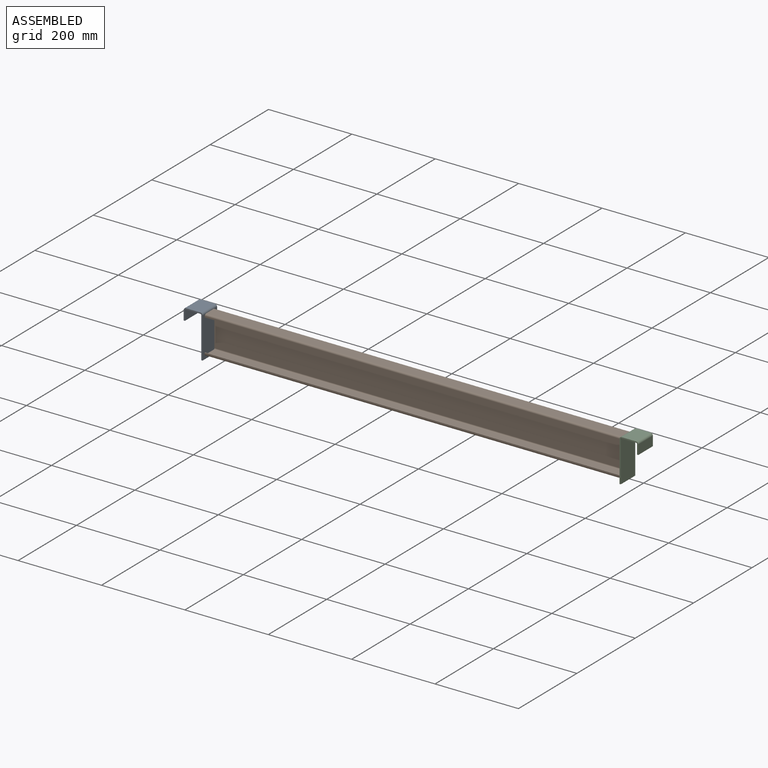
[diagram: assembled view]
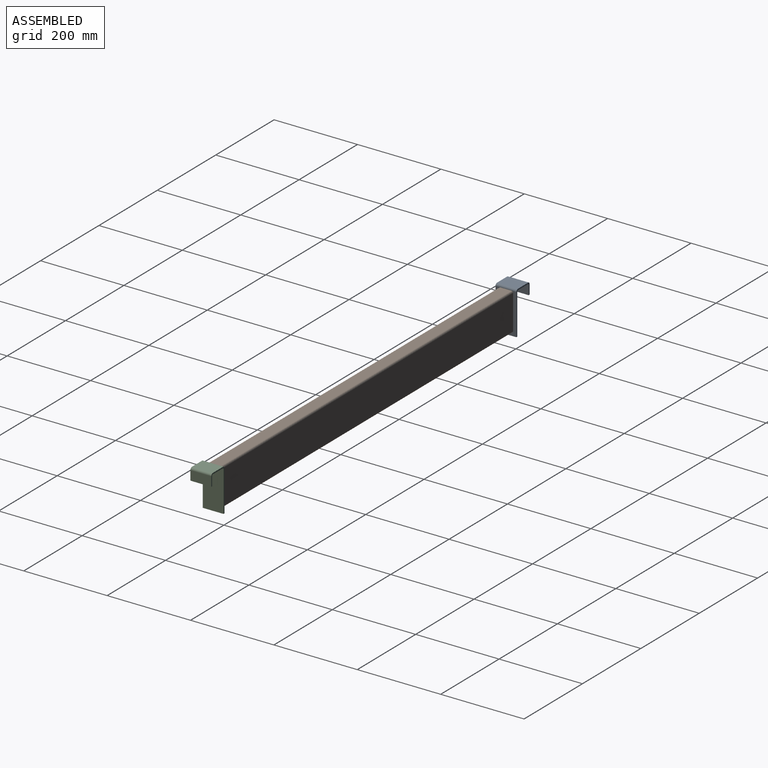
[diagram: assembled view, second angle]
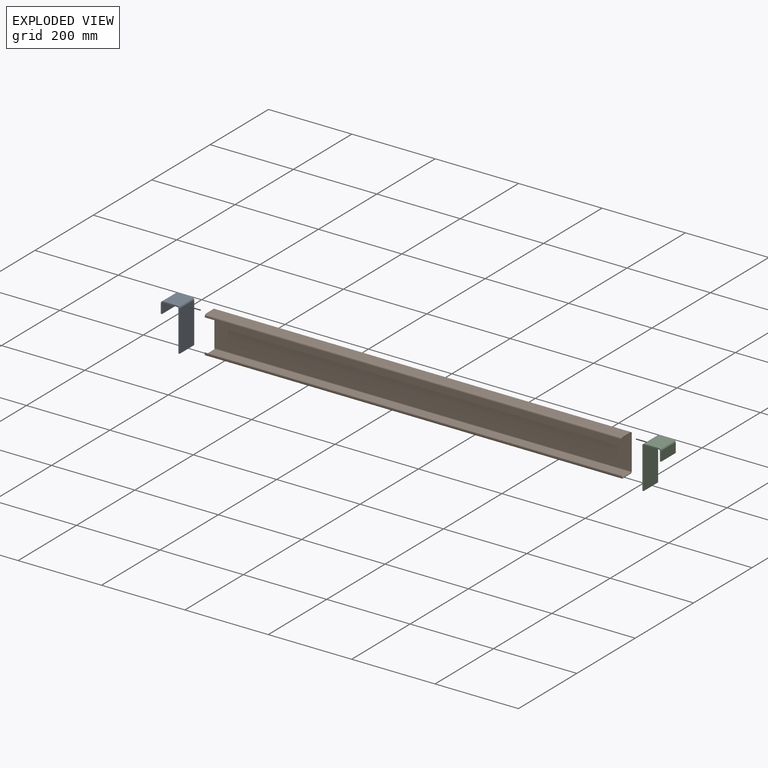
[diagram: exploded view]
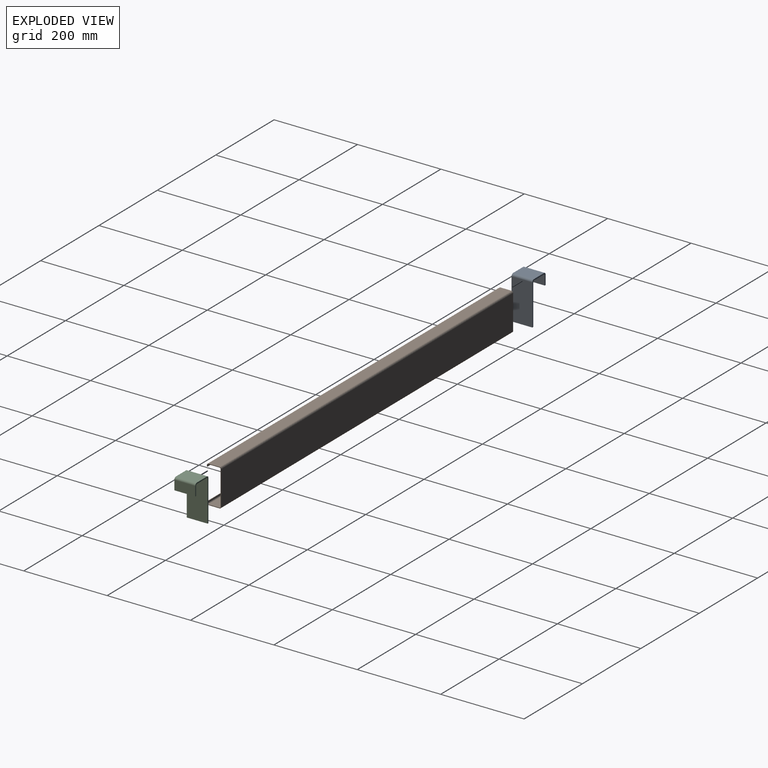
[diagram: exploded view, second angle]
ASSEMBLY  parts=3 mates=2
PART A: 22 faces, bbox 45.2x50x103 mm
  f0: plane 22.7x3mm, normal (0,1,0), area 68.1mm2, adj f1,f3,f4,f19
  f1: plane 50x3mm, normal (0,0,-1), area 150mm2, adj f0,f2,f3,f4
  f2: plane 22.7x3mm, normal (0,-1,0), area 68.1mm2, adj f1,f3,f4,f18
  f3: plane 50x22.7mm, normal (-1,0,0), area 1135mm2, adj f0,f1,f2,f20
  f4: plane 50x22.7mm, normal (1,0,0), area 1135mm2, adj f0,f1,f2,f21
  f5: plane 34.61x3mm, normal (0,1,0), area 103.8mm2, adj f7,f8,f15,f19
  f6: plane 34.61x3mm, normal (0,-1,0), area 103.8mm2, adj f7,f8,f14,f18
  f7: plane 50x34.61mm, normal (0,0,1), area 1730.5mm2, adj f5,f6,f16,f20
  f8: plane 50x34.61mm, normal (0,0,-1), area 1730.5mm2, adj f5,f6,f17,f21
  f9: plane 97.7x3mm, normal (0,1,0), area 293.1mm2, adj f11,f12,f13,f15
  f10: plane 97.7x3mm, normal (0,-1,0), area 293.1mm2, adj f11,f12,f13,f14
  f11: plane 50x3mm, normal (0,0,-1), area 150mm2, adj f9,f10,f12,f13
  f12: plane 97.7x50mm, normal (1,0,0), area 4885mm2, adj f9,f10,f11,f16
  f13: plane 97.7x50mm, normal (-1,0,0), area 4885mm2, adj f9,f10,f11,f17
  f14: plane 5.3x5.3mm, normal (0,-1,0), area 17.9mm2, adj f6,f10,f16,f17
  f15: plane 5.3x5.3mm, normal (0,1,0), area 17.9mm2, adj f5,f9,f16,f17
  f16: cylinder r=5.3mm len=50mm, axis (0,-1,0), area 416.3mm2, adj f7,f12,f14,f15
  f17: cylinder r=2.3mm len=50mm, axis (0,-1,0), area 180.6mm2, adj f8,f13,f14,f15
  f18: plane 5.3x5.3mm, normal (0,-1,0), area 17.9mm2, adj f2,f6,f20,f21
  f19: plane 5.3x5.3mm, normal (0,1,0), area 17.9mm2, adj f0,f5,f20,f21
  f20: cylinder r=5.3mm len=50mm, axis (0,-1,0), area 416.3mm2, adj f3,f7,f18,f19
  f21: cylinder r=2.3mm len=50mm, axis (0,-1,0), area 180.6mm2, adj f4,f8,f18,f19
PART B: 38 faces, bbox 35x1000x90 mm
  f0: plane 3x1.5mm, normal (0,1,0), area 4.5mm2, adj f2,f3,f4,f34
  f1: plane 3x1.5mm, normal (0,-1,0), area 4.5mm2, adj f2,f3,f4,f35
  f2: plane 1000x1.5mm, normal (0,0,-1), area 1500mm2, adj f0,f1,f3,f4
  f3: plane 1000x3mm, normal (1,0,0), area 3000mm2, adj f0,f1,f2,f36
  f4: plane 1000x3mm, normal (-1,0,0), area 3000mm2, adj f0,f1,f2,f37
  f5: plane 27x1.5mm, normal (0,1,0), area 40.5mm2, adj f7,f8,f30,f34
  f6: plane 27x1.5mm, normal (0,-1,0), area 40.5mm2, adj f7,f8,f31,f35
  f7: plane 1000x27mm, normal (0,0,-1), area 27000mm2, adj f5,f6,f32,f36
  f8: plane 1000x27mm, normal (0,0,1), area 27000mm2, adj f5,f6,f33,f37
  f9: plane 82x1.5mm, normal (0,1,0), area 123mm2, adj f11,f12,f26,f30
  f10: plane 82x1.5mm, normal (0,-1,0), area 123mm2, adj f11,f12,f27,f31
  f11: plane 1000x82mm, normal (-1,0,0), area 82000mm2, adj f9,f10,f28,f32
  f12: plane 1000x82mm, normal (1,0,0), area 82000mm2, adj f9,f10,f29,f33
  f13: plane 26.3x1.5mm, normal (0,1,0), area 39.5mm2, adj f15,f16,f22,f26
  f14: plane 26.3x1.5mm, normal (0,-1,0), area 39.5mm2, adj f15,f16,f23,f27
  f15: plane 1000x26.3mm, normal (0,0,1), area 26300mm2, adj f13,f14,f24,f28
  f16: plane 1000x26.3mm, normal (0,0,-1), area 26300mm2, adj f13,f14,f25,f29
  f17: plane 3x1.5mm, normal (0,1,0), area 4.5mm2, adj f18,f20,f21,f22
  f18: plane 1000x1.5mm, normal (0,0,1), area 1500mm2, adj f17,f19,f20,f21
  f19: plane 3x1.5mm, normal (0,-1,0), area 4.5mm2, adj f18,f20,f21,f23
  f20: plane 1000x3mm, normal (1,0,0), area 3000mm2, adj f17,f18,f19,f24
  f21: plane 1000x3mm, normal (-1,0,0), area 3000mm2, adj f17,f18,f19,f25
  f22: plane 4x4mm, normal (0,1,0), area 7.7mm2, adj f13,f17,f24,f25
  f23: plane 4x4mm, normal (0,-1,0), area 7.7mm2, adj f14,f19,f24,f25
  f24: cylinder r=2.5mm len=1000mm, axis (0,-1,0), area 3927mm2, adj f15,f20,f22,f23
  f25: cylinder r=4mm len=1000mm, axis (0,-1,0), area 6283.2mm2, adj f16,f21,f22,f23
  f26: plane 4x4mm, normal (0,1,0), area 7.7mm2, adj f9,f13,f28,f29
  f27: plane 4x4mm, normal (0,-1,0), area 7.7mm2, adj f10,f14,f28,f29
  f28: cylinder r=2.5mm len=1000mm, axis (0,-1,0), area 3927mm2, adj f11,f15,f26,f27
  f29: cylinder r=4mm len=1000mm, axis (0,-1,0), area 6283.2mm2, adj f12,f16,f26,f27
  f30: plane 4x4mm, normal (0,1,0), area 7.7mm2, adj f5,f9,f32,f33
  f31: plane 4x4mm, normal (0,-1,0), area 7.7mm2, adj f6,f10,f32,f33
  f32: cylinder r=2.5mm len=1000mm, axis (0,-1,0), area 3927mm2, adj f7,f11,f30,f31
  f33: cylinder r=4mm len=1000mm, axis (0,-1,0), area 6283.2mm2, adj f8,f12,f30,f31
  f34: plane 4x4mm, normal (0,1,0), area 7.7mm2, adj f0,f5,f36,f37
  f35: plane 4x4mm, normal (0,-1,0), area 7.7mm2, adj f1,f6,f36,f37
  f36: cylinder r=2.5mm len=1000mm, axis (0,-1,0), area 3927mm2, adj f3,f7,f34,f35
  f37: cylinder r=4mm len=1000mm, axis (0,-1,0), area 6283.2mm2, adj f4,f8,f34,f35
PART C: same geometry as A
PLACE A t=(-34.05,-9.83,-0.57)mm
PLACE B rot(axis=(0.71,0.71,0),180deg) t=(984,-32.1,-40.11)mm
PLACE C rot(axis=(0,0,1),180deg) t=(1002.05,-59.83,-0.57)mm
MATE fastened C.f12 <-> B.f13  axis (-1,0,0) through (984,-34.83,25.64)mm
MATE fastened B.f14 <-> A.f12  axis (-1,0,0) through (-16,-34.83,25.64)mm
